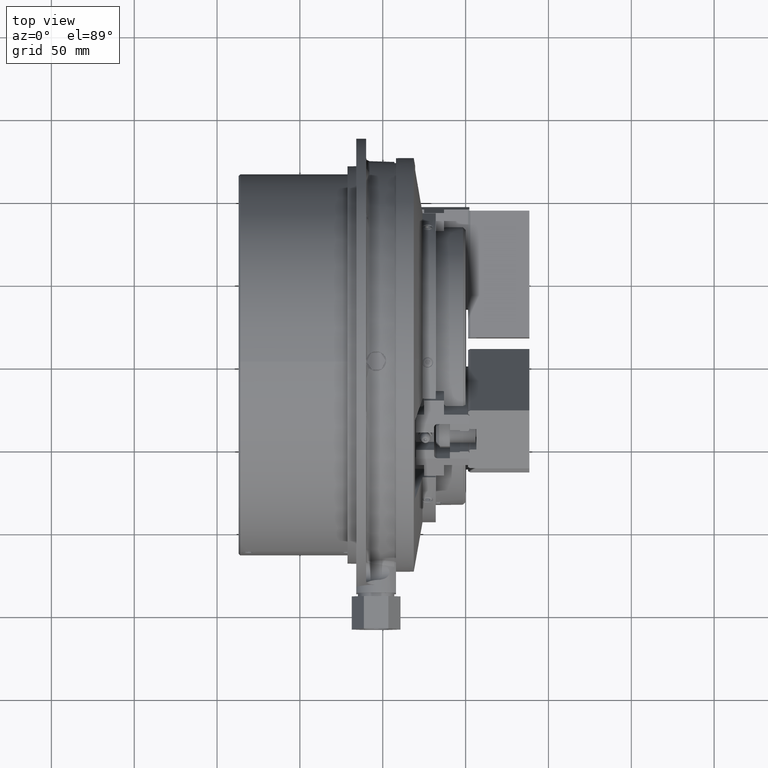
[diagram: clean part render]
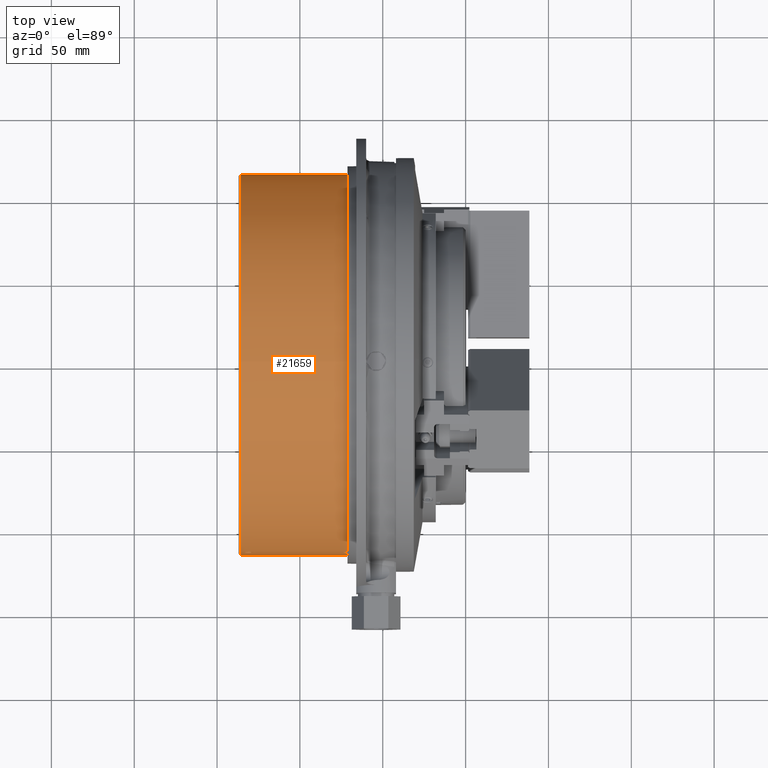
[diagram: same view with one face highlighted and labeled with its STEP entity id]
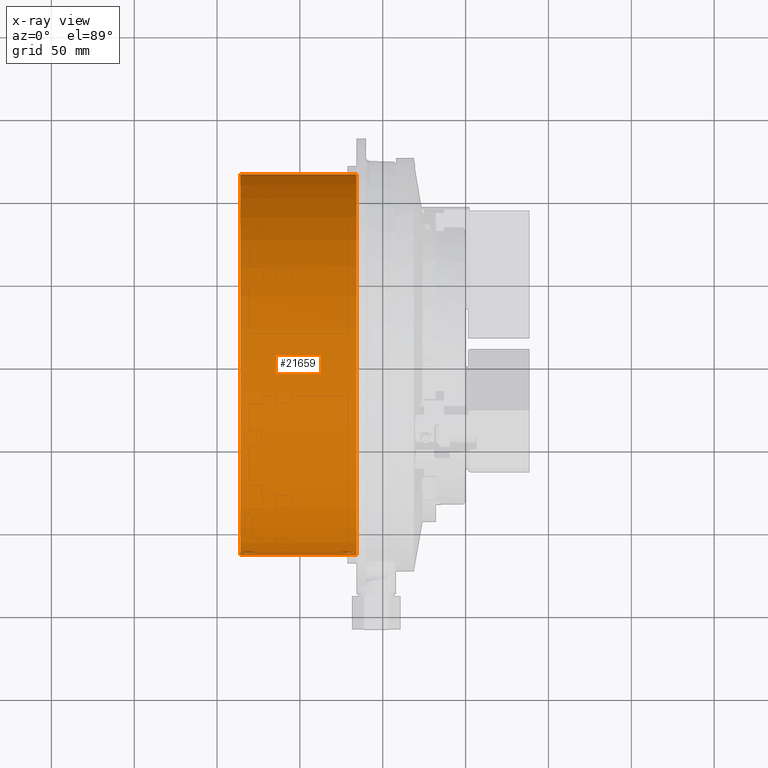
[diagram: x-ray of the same camera — body ghosted, the highlighted face saturated]
A machine part, top view. The second image highlights one B-rep face of the part: STEP entity #21659.
The next image is the same camera in x-ray: the body ghosted, the highlighted face saturated — about 0% of this face is hidden behind the body in this view.
In plain terms, the highlighted cylindrical surface (bore or boss wall) has radius 115 mm, axis along (1, 0, 0).
Its self-contained STEP definition (entity closure, byte-faithful):
#478=CYLINDRICAL_SURFACE('',#23648,115.);
#724=B_SPLINE_CURVE_WITH_KNOTS('',3,(#40210,#40211,#40212,#40213,#40214,
#40215,#40216,#40217,#40218,#40219,#40220,#40221,#40222,#40223,#40224,#40225,
#40226,#40227,#40228,#40229,#40230,#40231,#40232,#40233,#40234,#40235,#40236,
#40237,#40238,#40239,#40240,#40241,#40242,#40243,#40244,#40245,#40246,#40247,
#40248,#40249,#40250,#40251,#40252,#40253,#40254,#40255,#40256,#40257,#40258,
#40259,#40260,#40261,#40262,#40263,#40264,#40265,#40266,#40267,#40268,#40269,
#40270,#40271,#40272,#40273,#40274,#40275,#40276,#40277,#40278,#40279,#40280,
#40281,#40282,#40283,#40284,#40285,#40286,#40287,#40288,#40289,#40290,#40291,
#40292,#40293,#40294,#40295,#40296,#40297,#40298,#40299,#40300,#40301,#40302,
#40303,#40304,#40305,#40306,#40307,#40308,#40309,#40310,#40311,#40312,#40313,
#40314,#40315,#40316,#40317,#40318,#40319,#40320,#40321,#40322,#40323,#40324,
#40325,#40326,#40327,#40328,#40329,#40330,#40331,#40332,#40333,#40334,#40335,
#40336,#40337,#40338,#40339,#40340,#40341,#40342,#40343,#40344,#40345,#40346,
#40347,#40348,#40349,#40350,#40351,#40352,#40353,#40354,#40355,#40356,#40357,
#40358,#40359,#40360,#40361,#40362,#40363,#40364,#40365,#40366,#40367,#40368,
#40369,#40370,#40371,#40372,#40373,#40374,#40375,#40376,#40377,#40378,#40379,
#40380,#40381,#40382,#40383,#40384,#40385,#40386,#40387,#40388,#40389,#40390),
 .UNSPECIFIED.,.T.,.F.,(1,1,2,2,1,2,1,2,2,2,1,2,1,2,2,2,1,2,2,2,1,2,1,2,
1,2,2,1,1,2,2,2,1,2,1,2,2,2,2,1,2,2,2,1,1,2,1,2,2,2,1,2,1,1,2,2,2,1,2,2,
2,1,2,1,2,1,2,2,1,2,1,2,2,1,2,1,2,2,2,2,1,1,1,2,2,1,2,1,2,2,2,1,2,1,2,1,
2,2,2,1,2,1,2,2,2,1,2,1,2,2,1,1,2,2),(-0.0312500000000693,-0.0156250000000345,
0.,0.015624999999955,0.0312499999999099,0.0468749999998649,0.0507812499998543,
0.0527343749998491,0.0546874999998438,0.0624999999998227,0.0781249999997839,
0.0937499999997451,0.101562499999727,0.105468749999719,0.10937499999971,
0.124999999999681,0.140624999999653,0.156249999999624,0.16015624999962,
0.162109374999618,0.164062499999615,0.171874999999616,0.187499999999621,
0.203124999999626,0.210937499999628,0.214843749999628,0.218749999999628,
0.234374999999624,0.249999999999621,0.265624999999618,0.267578124999617,
0.269531249999616,0.273437499999614,0.281249999999611,0.296874999999607,
0.312499999999603,0.320312499999601,0.3242187499996,0.328124999999599,0.343749999999595,
0.359374999999591,0.374999999999588,0.376953124999587,0.378906249999586,
0.382812499999586,0.390624999999584,0.40624999999958,0.421874999999577,
0.429687499999575,0.437499999999574,0.45312499999957,0.468749999999567,
0.476562499999566,0.480468749999564,0.482421874999563,0.484374999999562,
0.499999999999549,0.515624999999535,0.531249999999522,0.535156249999517,
0.537109374999515,0.539062499999513,0.546874999999507,0.562499999999495,
0.578124999999483,0.585937499999477,0.589843749999474,0.591796874999472,
0.593749999999471,0.609374999999476,0.624999999999481,0.640624999999486,
0.644531249999488,0.648437499999489,0.656249999999492,0.6718749999995,0.687499999999509,
0.695312499999513,0.697265624999515,0.699218749999517,0.703124999999521,
0.71874999999954,0.73437499999956,0.749999999999579,0.753906249999586,0.757812499999592,
0.765624999999603,0.781249999999628,0.796874999999652,0.804687499999664,
0.806640624999667,0.808593749999671,0.812499999999678,0.828124999999707,
0.843749999999736,0.85156249999975,0.855468749999758,0.859374999999765,
0.874999999999794,0.890624999999822,0.906249999999851,0.910156249999858,
0.912109374999861,0.914062499999864,0.921874999999874,0.937499999999893,
0.953124999999911,0.96093749999992,0.964843749999925,0.966796874999928,
0.968749999999931,0.984374999999965,1.,1.01562499999995),.UNSPECIFIED.);
#747=B_SPLINE_CURVE_WITH_KNOTS('',3,(#42561,#42562,#42563,#42564,#42565,
#42566,#42567,#42568,#42569,#42570,#42571,#42572,#42573,#42574,#42575,#42576,
#42577,#42578,#42579,#42580,#42581,#42582,#42583,#42584,#42585,#42586,#42587,
#42588,#42589,#42590,#42591,#42592,#42593,#42594,#42595,#42596,#42597,#42598,
#42599,#42600,#42601,#42602,#42603,#42604,#42605,#42606,#42607,#42608,#42609,
#42610,#42611,#42612,#42613,#42614,#42615,#42616,#42617,#42618,#42619,#42620,
#42621,#42622,#42623,#42624,#42625,#42626,#42627,#42628,#42629,#42630,#42631,
#42632,#42633,#42634,#42635,#42636,#42637,#42638,#42639,#42640,#42641,#42642,
#42643,#42644,#42645,#42646,#42647,#42648,#42649,#42650,#42651,#42652,#42653,
#42654,#42655,#42656,#42657,#42658,#42659,#42660,#42661,#42662,#42663,#42664,
#42665,#42666,#42667,#42668,#42669,#42670,#42671,#42672,#42673,#42674,#42675,
#42676,#42677,#42678,#42679,#42680,#42681,#42682,#42683,#42684,#42685,#42686,
#42687,#42688,#42689,#42690,#42691,#42692,#42693,#42694,#42695,#42696,#42697,
#42698,#42699,#42700,#42701,#42702,#42703,#42704,#42705,#42706,#42707,#42708,
#42709,#42710,#42711,#42712,#42713,#42714,#42715,#42716,#42717,#42718,#42719,
#42720,#42721,#42722,#42723,#42724,#42725,#42726,#42727,#42728,#42729,#42730,
#42731,#42732,#42733,#42734,#42735,#42736,#42737,#42738,#42739),
 .UNSPECIFIED.,.T.,.F.,(1,1,2,2,1,2,1,2,2,2,1,2,1,2,2,2,1,2,2,2,1,2,1,2,
1,2,2,1,1,2,2,2,1,2,1,2,2,2,2,1,2,2,2,1,1,2,1,2,2,2,1,2,1,1,2,2,1,1,2,2,
2,1,2,1,2,1,2,2,1,2,1,2,2,1,2,1,2,2,2,2,1,1,1,2,2,1,2,1,2,2,2,1,2,1,2,1,
2,2,2,1,2,1,2,2,2,1,2,1,2,2,1,2,2),(-0.0312500000000406,-0.0156250000000202,
0.,0.0156249999999914,0.0312499999999828,0.0468749999999742,0.0507812499999729,
0.0527343749999715,0.0546874999999702,0.0624999999999615,0.0781249999999458,
0.09374999999993,0.101562499999922,0.105468749999918,0.109374999999914,
0.124999999999895,0.140624999999876,0.156249999999857,0.160156249999853,
0.162109374999851,0.16406249999985,0.171874999999842,0.187499999999828,
0.203124999999814,0.210937499999807,0.214843749999804,0.2187499999998,0.234374999999786,
0.249999999999771,0.265624999999757,0.267578124999756,0.269531249999754,
0.27343749999975,0.281249999999742,0.296874999999726,0.312499999999711,
0.320312499999702,0.324218749999698,0.328124999999694,0.343749999999678,
0.359374999999662,0.374999999999646,0.376953124999645,0.378906249999643,
0.38281249999964,0.390624999999634,0.406249999999623,0.421874999999611,
0.429687499999605,0.437499999999599,0.453124999999587,0.468749999999575,
0.476562499999569,0.480468749999566,0.482421874999564,0.484374999999563,
0.499999999999551,0.515624999999538,0.531249999999526,0.535156249999523,
0.537109374999521,0.53906249999952,0.546874999999517,0.562499999999513,
0.578124999999509,0.585937499999507,0.589843749999506,0.591796874999507,
0.593749999999508,0.60937499999952,0.624999999999531,0.640624999999542,
0.644531249999545,0.648437499999548,0.656249999999556,0.671874999999572,
0.687499999999589,0.695312499999598,0.6972656249996,0.699218749999601,0.703124999999606,
0.718749999999621,0.734374999999637,0.749999999999652,0.753906249999657,
0.757812499999662,0.765624999999671,0.781249999999692,0.796874999999712,
0.804687499999722,0.806640624999725,0.808593749999728,0.812499999999733,
0.828124999999757,0.84374999999978,0.851562499999792,0.855468749999798,
0.859374999999803,0.874999999999827,0.890624999999851,0.906249999999874,
0.910156249999881,0.912109374999884,0.914062499999886,0.921874999999897,
0.937499999999918,0.953124999999939,0.960937499999949,0.964843749999954,
0.968749999999959,0.98437499999998,1.,1.01562499999999),.UNSPECIFIED.);
#748=B_SPLINE_CURVE_WITH_KNOTS('',3,(#42742,#42743,#42744,#42745,#42746,
#42747,#42748,#42749,#42750,#42751,#42752,#42753,#42754,#42755,#42756,#42757,
#42758,#42759,#42760,#42761,#42762,#42763,#42764,#42765,#42766,#42767,#42768,
#42769,#42770,#42771,#42772,#42773,#42774,#42775,#42776,#42777,#42778,#42779,
#42780,#42781,#42782,#42783,#42784,#42785,#42786,#42787,#42788,#42789,#42790,
#42791,#42792,#42793,#42794,#42795,#42796,#42797,#42798,#42799,#42800,#42801,
#42802,#42803,#42804,#42805,#42806,#42807,#42808,#42809,#42810,#42811,#42812,
#42813,#42814,#42815,#42816,#42817,#42818,#42819,#42820,#42821,#42822,#42823,
#42824,#42825,#42826,#42827,#42828,#42829,#42830,#42831,#42832,#42833,#42834,
#42835,#42836,#42837,#42838,#42839,#42840,#42841,#42842,#42843,#42844,#42845,
#42846,#42847,#42848,#42849,#42850,#42851,#42852,#42853,#42854,#42855,#42856,
#42857,#42858,#42859,#42860,#42861,#42862,#42863,#42864,#42865,#42866,#42867,
#42868,#42869,#42870,#42871,#42872,#42873,#42874,#42875,#42876,#42877,#42878,
#42879,#42880,#42881,#42882,#42883,#42884,#42885,#42886,#42887,#42888,#42889,
#42890,#42891,#42892,#42893,#42894,#42895,#42896,#42897,#42898,#42899,#42900,
#42901,#42902,#42903,#42904,#42905,#42906,#42907,#42908,#42909,#42910,#42911,
#42912,#42913,#42914,#42915,#42916,#42917,#42918,#42919,#42920,#42921,#42922),
 .UNSPECIFIED.,.T.,.F.,(1,1,2,2,1,2,1,2,2,2,1,2,1,2,2,2,1,2,2,2,1,2,1,2,
1,2,2,1,1,2,2,2,1,2,1,2,2,2,2,1,2,2,2,1,1,2,1,2,2,2,1,2,1,1,2,2,2,1,2,2,
2,1,2,1,2,1,2,2,1,2,1,2,2,1,2,1,2,2,2,2,1,1,1,2,2,1,2,1,2,2,2,1,2,1,2,1,
2,2,2,1,2,1,2,2,2,1,2,1,2,2,1,1,2,2),(-0.0312499999999725,-0.0156249999999862,
0.,0.0156250000000149,0.0312500000000298,0.0468750000000447,0.0507812500000492,
0.0527343750000507,0.0546875000000522,0.0625000000000547,0.0781250000000582,
0.0937500000000616,0.101562500000064,0.105468750000065,0.109375000000067,
0.12500000000007,0.140625000000074,0.156250000000077,0.160156250000078,
0.162109375000079,0.16406250000008,0.171875000000082,0.187500000000089,
0.203125000000096,0.210937500000099,0.2148437500001,0.218750000000101,0.234375000000109,
0.250000000000116,0.265625000000124,0.267578125000124,0.269531250000125,
0.273437500000127,0.281250000000131,0.29687500000014,0.312500000000148,
0.320312500000152,0.324218750000154,0.328125000000157,0.343750000000167,
0.359375000000176,0.375000000000186,0.376953125000187,0.378906250000188,
0.382812500000191,0.390625000000195,0.406250000000203,0.421875000000211,
0.429687500000215,0.437500000000219,0.453125000000227,0.468750000000235,
0.476562500000239,0.480468750000241,0.482421875000243,0.484375000000244,
0.500000000000251,0.515625000000259,0.531250000000266,0.535156250000269,
0.53710937500027,0.539062500000272,0.546875000000279,0.562500000000294,
0.578125000000308,0.585937500000315,0.589843750000318,0.591796875000319,
0.593750000000321,0.609375000000322,0.625000000000322,0.640625000000323,
0.644531250000322,0.648437500000322,0.656250000000319,0.671875000000312,
0.687500000000306,0.695312500000302,0.6972656250003,0.699218750000299,0.703125000000295,
0.718750000000279,0.734375000000263,0.750000000000246,0.753906250000242,
0.757812500000237,0.765625000000228,0.781250000000209,0.79687500000019,
0.80468750000018,0.806640625000178,0.808593750000176,0.812500000000172,
0.828125000000157,0.843750000000141,0.851562500000134,0.85546875000013,
0.859375000000126,0.87500000000011,0.890625000000093,0.906250000000077,
0.910156250000073,0.912109375000071,0.914062500000069,0.921875000000064,
0.937500000000051,0.953125000000039,0.960937500000033,0.964843750000031,
0.966796875000029,0.968750000000028,0.984375000000014,1.,1.01562500000001),
 .UNSPECIFIED.);
#10084=ORIENTED_EDGE('',*,*,#12477,.F.);
#10085=ORIENTED_EDGE('',*,*,#12475,.F.);
#10086=ORIENTED_EDGE('',*,*,#13205,.F.);
#10087=ORIENTED_EDGE('',*,*,#13206,.F.);
#10088=ORIENTED_EDGE('',*,*,#10619,.T.);
#10619=EDGE_CURVE('',#13520,#13520,#15528,.T.);
#12475=EDGE_CURVE('',#14793,#14793,#724,.T.);
#12477=EDGE_CURVE('',#14795,#14795,#15908,.T.);
#13205=EDGE_CURVE('',#15259,#15259,#747,.T.);
#13206=EDGE_CURVE('',#15260,#15260,#748,.T.);
#13520=VERTEX_POINT('',#32036);
#14793=VERTEX_POINT('',#40391);
#14795=VERTEX_POINT('',#40396);
#15259=VERTEX_POINT('',#42740);
#15260=VERTEX_POINT('',#42923);
#15528=CIRCLE('',#22042,115.);
#15908=CIRCLE('',#23056,115.);
#17658=EDGE_LOOP('',(#10084));
#17659=EDGE_LOOP('',(#10085));
#17660=EDGE_LOOP('',(#10086));
#17661=EDGE_LOOP('',(#10087));
#17662=EDGE_LOOP('',(#10088));
#19412=FACE_BOUND('',#17658,.T.);
#19413=FACE_BOUND('',#17659,.T.);
#19414=FACE_BOUND('',#17660,.T.);
#19415=FACE_BOUND('',#17661,.T.);
#19416=FACE_BOUND('',#17662,.T.);
#21659=ADVANCED_FACE('',(#19412,#19413,#19414,#19415,#19416),#478,.T.);
#22042=AXIS2_PLACEMENT_3D('',#32035,#24344,#24345);
#23056=AXIS2_PLACEMENT_3D('',#40395,#27696,#27697);
#23648=AXIS2_PLACEMENT_3D('',#42924,#29404,#29405);
#24344=DIRECTION('',(-1.,0.,0.));
#24345=DIRECTION('',(0.,0.,1.));
#27696=DIRECTION('',(-1.,0.,0.));
#27697=DIRECTION('',(0.,0.,1.));
#29404=DIRECTION('',(1.,0.,0.));
#29405=DIRECTION('',(0.,0.,-1.));
#32035=CARTESIAN_POINT('',(-65.8,0.,0.));
#32036=CARTESIAN_POINT('',(-65.8,0.,115.));
#40210=CARTESIAN_POINT('',(-133.593874814938,-113.914985151284,15.7601710850498));
#40211=CARTESIAN_POINT('',(-133.406286473492,-113.937496074386,15.59659651804));
#40212=CARTESIAN_POINT('',(-133.309203080286,-113.947937473222,15.5200754592976));
#40213=CARTESIAN_POINT('',(-133.108687254715,-113.967305452266,15.3772061126387));
#40214=CARTESIAN_POINT('',(-132.90182018955,-113.985158032638,15.2445130550453));
#40215=CARTESIAN_POINT('',(-132.682332406961,-114.000103272027,15.1320555705407));
#40216=CARTESIAN_POINT('',(-132.541118527192,-114.008544675873,15.0682416568252));
#40217=CARTESIAN_POINT('',(-132.498451126207,-114.011009473179,15.0495839817263));
#40218=CARTESIAN_POINT('',(-132.455324126064,-114.013372547406,15.0316637692804));
#40219=CARTESIAN_POINT('',(-132.426470054898,-114.014925274426,15.0198818228842));
#40220=CARTESIAN_POINT('',(-132.411983770376,-114.015690704389,15.0140702813707));
#40221=CARTESIAN_POINT('',(-132.339484580595,-114.01945131126,14.9855014625375));
#40222=CARTESIAN_POINT('',(-132.281150511269,-114.022253614643,14.9641599085997));
#40223=CARTESIAN_POINT('',(-132.105164470062,-114.030061587832,14.9045847976551));
#40224=CARTESIAN_POINT('',(-131.86789786137,-114.038878995538,14.8369942821938));
#40225=CARTESIAN_POINT('',(-131.625491439427,-114.044629651429,14.7926575597097));
#40226=CARTESIAN_POINT('',(-131.441740037083,-114.047796674675,14.7682138782768));
#40227=CARTESIAN_POINT('',(-131.349376907602,-114.049093122229,14.7581977761389));
#40228=CARTESIAN_POINT('',(-131.25627064991,-114.049953664893,14.7515447488554));
#40229=CARTESIAN_POINT('',(-131.194032855917,-114.050429555998,14.7478649822317));
#40230=CARTESIAN_POINT('',(-131.162796680612,-114.050618648702,14.7464025112878));
#40231=CARTESIAN_POINT('',(-131.00701252749,-114.051314078038,14.7410235702721));
#40232=CARTESIAN_POINT('',(-130.883140893712,-114.051078284932,14.7428492262815));
#40233=CARTESIAN_POINT('',(-130.636861610233,-114.049070495917,14.758373575775));
#40234=CARTESIAN_POINT('',(-130.392046887177,-114.04552570188,14.7857756113022));
#40235=CARTESIAN_POINT('',(-130.150152338637,-114.038891108433,14.8368571907245));
#40236=CARTESIAN_POINT('',(-129.999904923997,-114.03373834069,14.8763766953123));
#40237=CARTESIAN_POINT('',(-129.969902384181,-114.032657334537,14.884661153761));
#40238=CARTESIAN_POINT('',(-129.924969780475,-114.030958933482,14.8976650459051));
#40239=CARTESIAN_POINT('',(-129.909995778716,-114.030379639338,14.902098512379));
#40240=CARTESIAN_POINT('',(-129.88014921131,-114.029198321007,14.9111351449117));
#40241=CARTESIAN_POINT('',(-129.805749662529,-114.026186795825,14.9341616440649));
#40242=CARTESIAN_POINT('',(-129.732426489348,-114.022885503071,14.9593466414288));
#40243=CARTESIAN_POINT('',(-129.558479255177,-114.014409654717,15.0238573369547));
#40244=CARTESIAN_POINT('',(-129.331948905757,-114.001637200196,15.1206966482694));
#40245=CARTESIAN_POINT('',(-129.11605235237,-113.985884409471,15.2388446623498));
#40246=CARTESIAN_POINT('',(-128.95817124884,-113.972900263454,15.3355490071254));
#40247=CARTESIAN_POINT('',(-128.880242650805,-113.966115266684,15.3859277604283));
#40248=CARTESIAN_POINT('',(-128.803859670094,-113.958875208931,15.4394008115758));
#40249=CARTESIAN_POINT('',(-128.753285256473,-113.953945284385,15.475745230153));
#40250=CARTESIAN_POINT('',(-128.728274635316,-113.951438720902,15.4941914955542));
#40251=CARTESIAN_POINT('',(-128.604617648476,-113.938700904637,15.5877567811202));
#40252=CARTESIAN_POINT('',(-128.415612423552,-113.917005798524,15.7460157796162));
#40253=CARTESIAN_POINT('',(-128.157924578364,-113.880456353343,16.0083499829867));
#40254=CARTESIAN_POINT('',(-128.003356250806,-113.853303083023,16.1998638669053));
#40255=CARTESIAN_POINT('',(-127.921402883919,-113.83718921884,16.3124035727407));
#40256=CARTESIAN_POINT('',(-127.912366451404,-113.835387091417,16.3249750008316));
#40257=CARTESIAN_POINT('',(-127.894433396424,-113.831759192916,16.3502526609339));
#40258=CARTESIAN_POINT('',(-127.885531764159,-113.829932353505,16.3629663045039));
#40259=CARTESIAN_POINT('',(-127.859105589022,-113.824430267312,16.4012114771653));
#40260=CARTESIAN_POINT('',(-127.807317661498,-113.813329609845,16.4781901433931));
#40261=CARTESIAN_POINT('',(-127.758683465552,-113.801939164825,16.5566150514897));
#40262=CARTESIAN_POINT('',(-127.665550179096,-113.778768618869,16.715359706718));
#40263=CARTESIAN_POINT('',(-127.552380062368,-113.746836818539,16.9320632132343));
#40264=CARTESIAN_POINT('',(-127.460970192645,-113.712760604744,17.1587239922621));
#40265=CARTESIAN_POINT('',(-127.400714315441,-113.686355374534,17.3325138108606));
#40266=CARTESIAN_POINT('',(-127.382015073413,-113.677412093121,17.3910772571533));
#40267=CARTESIAN_POINT('',(-127.356086531874,-113.663777455781,17.4798910629067));
#40268=CARTESIAN_POINT('',(-127.347789184401,-113.659190760682,17.5096906089784));
#40269=CARTESIAN_POINT('',(-127.331990356415,-113.649991067074,17.5693039147608));
#40270=CARTESIAN_POINT('',(-127.324479411359,-113.64537358899,17.5991470266852));
#40271=CARTESIAN_POINT('',(-127.288846850631,-113.622197918758,17.7485428216726));
#40272=CARTESIAN_POINT('',(-127.244102328614,-113.584552182142,17.9887261867633));
#40273=CARTESIAN_POINT('',(-127.223307821867,-113.545763649917,18.2311484350943));
#40274=CARTESIAN_POINT('',(-127.214542137168,-113.506391502416,18.4746936160143));
#40275=CARTESIAN_POINT('',(-127.21617258673,-113.486413658043,18.5970275655383));
#40276=CARTESIAN_POINT('',(-127.225003199859,-113.463600028769,18.7353065360447));
#40277=CARTESIAN_POINT('',(-127.226082536241,-113.461059087966,18.750688326717));
#40278=CARTESIAN_POINT('',(-127.228430706859,-113.455981097627,18.7813895992399));
#40279=CARTESIAN_POINT('',(-127.232238207663,-113.448366057753,18.827371698712));
#40280=CARTESIAN_POINT('',(-127.243109859664,-113.430611454951,18.9341769036248));
#40281=CARTESIAN_POINT('',(-127.255796996177,-113.415417366562,19.0249000133694));
#40282=CARTESIAN_POINT('',(-127.285595576991,-113.385063764887,19.2052642019668));
#40283=CARTESIAN_POINT('',(-127.33710645765,-113.344684035937,19.4428688943544));
#40284=CARTESIAN_POINT('',(-127.411980784747,-113.304532279047,19.6747674537162));
#40285=CARTESIAN_POINT('',(-127.47708073695,-113.274530986126,19.8465112099325));
#40286=CARTESIAN_POINT('',(-127.500277309522,-113.264548122312,19.9034024889215));
#40287=CARTESIAN_POINT('',(-127.549709010754,-113.244631312711,20.0164125366113));
#40288=CARTESIAN_POINT('',(-127.575741772715,-113.234778757148,20.07206967139));
#40289=CARTESIAN_POINT('',(-127.657707083667,-113.205540125112,20.2365527912578));
#40290=CARTESIAN_POINT('',(-127.777285963745,-113.167404531549,20.4492412635859));
#40291=CARTESIAN_POINT('',(-127.917029330101,-113.131028462894,20.6489720146145));
#40292=CARTESIAN_POINT('',(-128.029460117138,-113.104451825093,20.7938786408002));
#40293=CARTESIAN_POINT('',(-128.08758439628,-113.091340182036,20.8651071316707));
#40294=CARTESIAN_POINT('',(-128.158788328124,-113.07636661431,20.9460321088046));
#40295=CARTESIAN_POINT('',(-128.190038920748,-113.070020424743,20.9802434313375));
#40296=CARTESIAN_POINT('',(-128.21103686879,-113.065805630781,21.0029457541671));
#40297=CARTESIAN_POINT('',(-128.221621888757,-113.063705494127,21.0142482652562));
#40298=CARTESIAN_POINT('',(-128.317365800376,-113.044928613476,21.1152184131362));
#40299=CARTESIAN_POINT('',(-128.406291842049,-113.029033747476,21.2000987265111));
#40300=CARTESIAN_POINT('',(-128.591533335679,-112.998840127834,21.3604486700313));
#40301=CARTESIAN_POINT('',(-128.784167043659,-112.970243376728,21.5113843877287));
#40302=CARTESIAN_POINT('',(-128.991518988465,-112.94493621117,21.64359680091));
#40303=CARTESIAN_POINT('',(-129.125828157143,-112.930206180362,21.7202388499744));
#40304=CARTESIAN_POINT('',(-129.152926248817,-112.92731464144,21.7352670270017));
#40305=CARTESIAN_POINT('',(-129.19393162283,-112.923060514724,21.7573541636715));
#40306=CARTESIAN_POINT('',(-129.20766376307,-112.921655938139,21.7646427508723));
#40307=CARTESIAN_POINT('',(-129.235231271032,-112.918876477564,21.7790585056981));
#40308=CARTESIAN_POINT('',(-129.304305135363,-112.912012487093,21.8146401581543));
#40309=CARTESIAN_POINT('',(-129.37414862242,-112.905569891215,21.8479506507224));
#40310=CARTESIAN_POINT('',(-129.543222276443,-112.890909723241,21.9236206463544));
#40311=CARTESIAN_POINT('',(-129.77251167751,-112.873498438895,22.0131339392394));
#40312=CARTESIAN_POINT('',(-130.009388880246,-112.860365318876,22.080279647708));
#40313=CARTESIAN_POINT('',(-130.189926590801,-112.852162123971,22.1221541955733));
#40314=CARTESIAN_POINT('',(-130.280916555407,-112.848472750357,22.1409668574));
#40315=CARTESIAN_POINT('',(-130.373007123169,-112.845415825624,22.1565374399687));
#40316=CARTESIAN_POINT('',(-130.419237962756,-112.843994220055,22.1637761789574));
#40317=CARTESIAN_POINT('',(-130.434684507382,-112.843538037779,22.1660986250984));
#40318=CARTESIAN_POINT('',(-130.465554612841,-112.842663829918,22.1705486333718));
#40319=CARTESIAN_POINT('',(-130.604456157184,-112.838899414588,22.1897070942264));
#40320=CARTESIAN_POINT('',(-130.743233823845,-112.836645285354,22.2011598726174));
#40321=CARTESIAN_POINT('',(-130.98975964244,-112.834964386141,22.2097014323002));
#40322=CARTESIAN_POINT('',(-131.236095349011,-112.835610725797,22.2064191245352));
#40323=CARTESIAN_POINT('',(-131.482051207029,-112.84090414677,22.179511885689));
#40324=CARTESIAN_POINT('',(-131.635651512617,-112.845698281566,22.1550988285986));
#40325=CARTESIAN_POINT('',(-131.666373624804,-112.846731837401,22.1498340114233));
#40326=CARTESIAN_POINT('',(-131.727771989894,-112.848948016732,22.1385402787565));
#40327=CARTESIAN_POINT('',(-131.819462316987,-112.852483734007,22.1205153173411));
#40328=CARTESIAN_POINT('',(-131.909946541759,-112.85664422247,22.0992784102714));
#40329=CARTESIAN_POINT('',(-132.089334944167,-112.865778850126,22.0525958682621));
#40330=CARTESIAN_POINT('',(-132.324313327313,-112.880124507374,21.9791486994669));
#40331=CARTESIAN_POINT('',(-132.550990823478,-112.898680094333,21.8835781309051));
#40332=CARTESIAN_POINT('',(-132.717837652767,-112.914168700577,21.8034686775088));
#40333=CARTESIAN_POINT('',(-132.772925445732,-112.919593957189,21.7753577668253));
#40334=CARTESIAN_POINT('',(-132.841112944767,-112.926705947593,21.7384254353685));
#40335=CARTESIAN_POINT('',(-132.854716811899,-112.928144875252,21.7309492292531));
#40336=CARTESIAN_POINT('',(-132.881856885052,-112.931055885595,21.7158162622283));
#40337=CARTESIAN_POINT('',(-132.895397928772,-112.932528529026,21.7081565773096));
#40338=CARTESIAN_POINT('',(-132.935808786012,-112.936983868795,21.6849700341886));
#40339=CARTESIAN_POINT('',(-133.069261432773,-112.952104685107,21.6061923854082));
#40340=CARTESIAN_POINT('',(-133.29842533916,-112.981687341348,21.4512260280686));
#40341=CARTESIAN_POINT('',(-133.580993544154,-113.025890653528,21.2171901703945));
#40342=CARTESIAN_POINT('',(-133.754009870242,-113.058429177834,21.0428213943281));
#40343=CARTESIAN_POINT('',(-133.857187979256,-113.079719402796,20.9279145176861));
#40344=CARTESIAN_POINT('',(-133.877592912615,-113.084029318325,20.9046139147463));
#40345=CARTESIAN_POINT('',(-133.917685859276,-113.092697817497,20.8576669431264));
#40346=CARTESIAN_POINT('',(-133.976823151678,-113.105788418931,20.7866478824229));
#40347=CARTESIAN_POINT('',(-134.032989381173,-113.119135387379,20.7138533721605));
#40348=CARTESIAN_POINT('',(-134.141422289949,-113.146155488237,20.5659321974145));
#40349=CARTESIAN_POINT('',(-134.275617617371,-113.18304989604,20.3624948685099));
#40350=CARTESIAN_POINT('',(-134.389248568019,-113.221559687917,20.1467400181764));
#40351=CARTESIAN_POINT('',(-134.466609861992,-113.251024058721,19.9802083956126));
#40352=CARTESIAN_POINT('',(-134.491084300468,-113.260942736463,19.9239105450758));
#40353=CARTESIAN_POINT('',(-134.520002129055,-113.273461803944,19.8525328613373));
#40354=CARTESIAN_POINT('',(-134.52570398653,-113.275972657763,19.8382012907919));
#40355=CARTESIAN_POINT('',(-134.536908780521,-113.280992672417,19.8095156721074));
#40356=CARTESIAN_POINT('',(-134.553428577366,-113.28852483782,19.7664268688439));
#40357=CARTESIAN_POINT('',(-134.569091447358,-113.296063043116,19.7231579843728));
#40358=CARTESIAN_POINT('',(-134.619415579362,-113.321202286783,19.578531912802));
#40359=CARTESIAN_POINT('',(-134.687899647586,-113.361499666766,19.3445994306708));
#40360=CARTESIAN_POINT('',(-134.732839073234,-113.40188267622,19.1057054694419));
#40361=CARTESIAN_POINT('',(-134.757655819882,-113.432186823393,18.9246594807405));
#40362=CARTESIAN_POINT('',(-134.767838657604,-113.447343238724,18.8336668705715));
#40363=CARTESIAN_POINT('',(-134.774634111473,-113.462504515342,18.7419591836902));
#40364=CARTESIAN_POINT('',(-134.778404030144,-113.472612995042,18.6806601867974));
#40365=CARTESIAN_POINT('',(-134.779909090798,-113.477669043193,18.6499223284535));
#40366=CARTESIAN_POINT('',(-134.785507923108,-113.502937877132,18.4959098884367));
#40367=CARTESIAN_POINT('',(-134.78377458055,-113.52281864321,18.3734818204911));
#40368=CARTESIAN_POINT('',(-134.768314272584,-113.561936276684,18.1301354210845));
#40369=CARTESIAN_POINT('',(-134.740855984893,-113.600409964998,17.8882993363029));
#40370=CARTESIAN_POINT('',(-134.689551633775,-113.63762870178,17.6494689570772));
#40371=CARTESIAN_POINT('',(-134.649862702106,-113.660504068145,17.5011632667575));
#40372=CARTESIAN_POINT('',(-134.637382945974,-113.667337676743,17.4567439773354));
#40373=CARTESIAN_POINT('',(-134.624034555827,-113.67412786684,17.4124345396965));
#40374=CARTESIAN_POINT('',(-134.614941450271,-113.678645018241,17.3829194815628));
#40375=CARTESIAN_POINT('',(-134.610296471303,-113.680899329444,17.3681705611919));
#40376=CARTESIAN_POINT('',(-134.586650420027,-113.692115604014,17.2946924050093));
#40377=CARTESIAN_POINT('',(-134.566338546836,-113.700936320211,17.2366020796938));
#40378=CARTESIAN_POINT('',(-134.501302186624,-113.726957456087,17.0643668350522));
#40379=CARTESIAN_POINT('',(-134.403672520131,-113.760478487113,16.8401381360509));
#40380=CARTESIAN_POINT('',(-134.284615225004,-113.791777394987,16.6265589270688));
#40381=CARTESIAN_POINT('',(-134.187204909811,-113.814446449731,16.4704142466913));
#40382=CARTESIAN_POINT('',(-134.136467148536,-113.825579433299,16.3933534734682));
#40383=CARTESIAN_POINT('',(-134.082629995315,-113.836412699161,16.317836300596));
#40384=CARTESIAN_POINT('',(-134.055189125722,-113.841779484905,16.2803379309813));
#40385=CARTESIAN_POINT('',(-134.045951589404,-113.843560772453,16.2678771727813));
#40386=CARTESIAN_POINT('',(-134.027317435668,-113.847103742734,16.243063978059));
#40387=CARTESIAN_POINT('',(-133.942817077768,-113.862944825979,16.1319900040502));
#40388=CARTESIAN_POINT('',(-133.772322558646,-113.891152669734,15.932045877234));
#40389=CARTESIAN_POINT('',(-133.593874814938,-113.914985151284,15.7601710850498));
#40390=CARTESIAN_POINT('',(-133.406286473492,-113.937496074386,15.59659651804));
#40391=CARTESIAN_POINT('',(-133.500080644215,-113.926240612835,15.6783838015447));
#40395=CARTESIAN_POINT('',(-136.,0.,0.));
#40396=CARTESIAN_POINT('',(-136.,0.,115.));
#42561=CARTESIAN_POINT('',(-74.2518795672988,-113.490200493251,-18.5736944669227));
#42562=CARTESIAN_POINT('',(-74.074346445627,-113.461660823519,-18.74724665965));
#42563=CARTESIAN_POINT('',(-73.9819822517687,-113.448123568055,-18.8289490578831));
#42564=CARTESIAN_POINT('',(-73.7903099049479,-113.42252009709,-18.982570441556));
#42565=CARTESIAN_POINT('',(-73.5916911009817,-113.398388323868,-19.1264049144846));
#42566=CARTESIAN_POINT('',(-73.3792691287571,-113.37728908377,-19.2508101473573));
#42567=CARTESIAN_POINT('',(-73.2420935046359,-113.365103391941,-19.3223586459217));
#42568=CARTESIAN_POINT('',(-73.2006091752697,-113.361522941148,-19.3433567801661));
#42569=CARTESIAN_POINT('',(-73.158622196468,-113.358057396612,-19.3636481391771));
#42570=CARTESIAN_POINT('',(-73.1305185163407,-113.355772811215,-19.3770177365766));
#42571=CARTESIAN_POINT('',(-73.1164028067744,-113.35464281921,-19.3836269822654));
#42572=CARTESIAN_POINT('',(-73.045727530521,-113.349072416274,-19.4161912048549));
#42573=CARTESIAN_POINT('',(-72.9887631768342,-113.344860911221,-19.4407575709144));
#42574=CARTESIAN_POINT('',(-72.8166234656637,-113.332953952617,-19.5100931584881));
#42575=CARTESIAN_POINT('',(-72.5837857898579,-113.319015362958,-19.5909269253032));
#42576=CARTESIAN_POINT('',(-72.3444352506926,-113.308950490328,-19.6489769917966));
#42577=CARTESIAN_POINT('',(-72.1624557256894,-113.302888969577,-19.6838891141595));
#42578=CARTESIAN_POINT('',(-72.0708483171466,-113.300230484616,-19.6991853352948));
#42579=CARTESIAN_POINT('',(-71.9782992455932,-113.29814224779,-19.7111891266386));
#42580=CARTESIAN_POINT('',(-71.9163883042675,-113.296878441044,-19.7184519955811));
#42581=CARTESIAN_POINT('',(-71.8852933342636,-113.296310305743,-19.7217159402028));
#42582=CARTESIAN_POINT('',(-71.7300996297595,-113.293806890534,-19.7360952721439));
#42583=CARTESIAN_POINT('',(-71.6063348669254,-113.292868631204,-19.7414770881514));
#42584=CARTESIAN_POINT('',(-71.3595612841971,-113.293059475851,-19.7403820318332));
#42585=CARTESIAN_POINT('',(-71.1135439419688,-113.295318320788,-19.7274235885666));
#42586=CARTESIAN_POINT('',(-70.8690344852059,-113.301688763028,-19.6908084070376));
#42587=CARTESIAN_POINT('',(-70.7166997518415,-113.306978225281,-19.6603337642817));
#42588=CARTESIAN_POINT('',(-70.6862570454075,-113.308101638684,-19.6538584382963));
#42589=CARTESIAN_POINT('',(-70.6406297548404,-113.30988585758,-19.6435683891947));
#42590=CARTESIAN_POINT('',(-70.6254182808659,-113.310497483326,-19.6400400596852));
#42591=CARTESIAN_POINT('',(-70.5950864427688,-113.311750598542,-19.6328090212076));
#42592=CARTESIAN_POINT('',(-70.5194474970074,-113.314959492324,-19.6142870617397));
#42593=CARTESIAN_POINT('',(-70.4447547895577,-113.318545515817,-19.5935595197608));
#42594=CARTESIAN_POINT('',(-70.2672754322,-113.327857045871,-19.5396561451262));
#42595=CARTESIAN_POINT('',(-70.0353827846917,-113.342149355328,-19.456718859426));
#42596=CARTESIAN_POINT('',(-69.8128381809555,-113.360065799126,-19.3519748763722));
#42597=CARTESIAN_POINT('',(-69.6494823418113,-113.374846723762,-19.2651237411825));
#42598=CARTESIAN_POINT('',(-69.5686940045394,-113.382573548634,-19.2196215380809));
#42599=CARTESIAN_POINT('',(-69.489264364587,-113.39080693779,-19.1709463720862));
#42600=CARTESIAN_POINT('',(-69.4366168089148,-113.396408938279,-19.1377825964048));
#42601=CARTESIAN_POINT('',(-69.4105526850287,-113.399255112267,-19.1209111338498));
#42602=CARTESIAN_POINT('',(-69.2815465165018,-113.413704009883,-19.0351412567832));
#42603=CARTESIAN_POINT('',(-69.0834572025926,-113.438219647448,-18.8888559007232));
#42604=CARTESIAN_POINT('',(-68.8106090699477,-113.47890724013,-18.6429754050697));
#42605=CARTESIAN_POINT('',(-68.6449100536206,-113.508529885669,-18.461391392519));
#42606=CARTESIAN_POINT('',(-68.5563988221887,-113.525883373753,-18.354126238368));
#42607=CARTESIAN_POINT('',(-68.5466296047771,-113.527821155772,-18.3421365411565));
#42608=CARTESIAN_POINT('',(-68.5272226643636,-113.531715952454,-18.3180135976236));
#42609=CARTESIAN_POINT('',(-68.5175795034592,-113.533674106471,-18.3058732682726));
#42610=CARTESIAN_POINT('',(-68.4889219737304,-113.539562158204,-18.2693304184293));
#42611=CARTESIAN_POINT('',(-68.4326400649262,-113.551403645767,-18.1956891284055));
#42612=CARTESIAN_POINT('',(-68.3794192269807,-113.563434795908,-18.1204010726076));
#42613=CARTESIAN_POINT('',(-68.2769911467506,-113.587735583198,-17.9676641717194));
#42614=CARTESIAN_POINT('',(-68.151104513377,-113.620771064148,-17.7582629117453));
#42615=CARTESIAN_POINT('',(-68.0463385588042,-113.654960737152,-17.5374752111599));
#42616=CARTESIAN_POINT('',(-67.9758215809564,-113.681009854848,-17.367535306381));
#42617=CARTESIAN_POINT('',(-67.9536612269577,-113.689760875815,-17.3101625341049));
#42618=CARTESIAN_POINT('',(-67.9224786836,-113.702987695405,-17.2229919839075));
#42619=CARTESIAN_POINT('',(-67.9124175886349,-113.707418323236,-17.1937167844527));
#42620=CARTESIAN_POINT('',(-67.893088655113,-113.716266553875,-17.1350984720669));
#42621=CARTESIAN_POINT('',(-67.8838096632199,-113.720688523772,-17.1057267472772));
#42622=CARTESIAN_POINT('',(-67.8393220601745,-113.742786494013,-16.9585583453938));
#42623=CARTESIAN_POINT('',(-67.7803149689926,-113.778066109237,-16.721111654146));
#42624=CARTESIAN_POINT('',(-67.7450737678758,-113.813142426612,-16.4797970349154));
#42625=CARTESIAN_POINT('',(-67.7217691143737,-113.848100353373,-16.2365373543907));
#42626=CARTESIAN_POINT('',(-67.7160839501387,-113.865520126836,-16.1139351637451));
#42627=CARTESIAN_POINT('',(-67.7166309535848,-113.885045474069,-15.9748759247149));
#42628=CARTESIAN_POINT('',(-67.7167886426362,-113.88721516702,-15.9594005184957));
#42629=CARTESIAN_POINT('',(-67.7172968684672,-113.891541264506,-15.9284987307258));
#42630=CARTESIAN_POINT('',(-67.7183480501672,-113.898013730883,-15.8821965000339));
#42631=CARTESIAN_POINT('',(-67.7228133613687,-113.913000062301,-15.7745095033156));
#42632=CARTESIAN_POINT('',(-67.7300518420762,-113.925648956755,-15.682802220676));
#42633=CARTESIAN_POINT('',(-67.7490089251341,-113.950690258837,-15.500170479025));
#42634=CARTESIAN_POINT('',(-67.7862130764286,-113.983395380566,-15.2587456545478));
#42635=CARTESIAN_POINT('',(-67.8470754070504,-114.014778991055,-15.0214591200339));
#42636=CARTESIAN_POINT('',(-67.9017791719567,-114.037831778836,-14.8450812998921));
#42637=CARTESIAN_POINT('',(-67.9215279887881,-114.045435873154,-14.7865481523964));
#42638=CARTESIAN_POINT('',(-67.9641074807417,-114.060480422422,-14.6700462019424));
#42639=CARTESIAN_POINT('',(-67.986762322318,-114.067858887994,-14.6125576403111));
#42640=CARTESIAN_POINT('',(-68.0587352881736,-114.089579396522,-14.442331610767));
#42641=CARTESIAN_POINT('',(-68.165367400989,-114.117435936137,-14.2213242489453));
#42642=CARTESIAN_POINT('',(-68.2929006279724,-114.143217861542,-14.0120060919909));
#42643=CARTESIAN_POINT('',(-68.3964519980412,-114.161808470551,-13.8594412355089));
#42644=CARTESIAN_POINT('',(-68.4502062276133,-114.170917067523,-13.7842665355293));
#42645=CARTESIAN_POINT('',(-68.5164354912812,-114.181221125078,-13.6985323577233));
#42646=CARTESIAN_POINT('',(-68.5455808689686,-114.185568295165,-13.6622158004818));
#42647=CARTESIAN_POINT('',(-68.5651813273105,-114.18845113091,-13.6381001533455));
#42648=CARTESIAN_POINT('',(-68.5750705168388,-114.189885435425,-13.6260855967168));
#42649=CARTESIAN_POINT('',(-68.6645974938559,-114.202690402403,-13.518680516821));
#42650=CARTESIAN_POINT('',(-68.8319623530576,-114.22410373457,-13.3370423387256));
#42651=CARTESIAN_POINT('',(-69.1068344812323,-114.252473312709,-13.0916189509976));
#42652=CARTESIAN_POINT('',(-69.3058948180582,-114.269010981187,-12.9459585709176));
#42653=CARTESIAN_POINT('',(-69.435371961059,-114.278621426764,-12.8606756984056));
#42654=CARTESIAN_POINT('',(-69.4615211998223,-114.280507148488,-12.8439075355582));
#42655=CARTESIAN_POINT('',(-69.5011299056557,-114.283281226072,-12.819192678435));
#42656=CARTESIAN_POINT('',(-69.5144007319621,-114.284197089655,-12.8110250110265));
#42657=CARTESIAN_POINT('',(-69.5410553800906,-114.286009556731,-12.7948460841453));
#42658=CARTESIAN_POINT('',(-69.6078742479903,-114.290485701419,-12.7548509857333));
#42659=CARTESIAN_POINT('',(-69.6755974779462,-114.294690187009,-12.7171000717156));
#42660=CARTESIAN_POINT('',(-69.8398362847713,-114.304278685176,-12.6307250513206));
#42661=CARTESIAN_POINT('',(-70.063354468279,-114.315727322633,-12.5268101361764));
#42662=CARTESIAN_POINT('',(-70.2957887768878,-114.324635760551,-12.4450358690915));
#42663=CARTESIAN_POINT('',(-70.4734984329032,-114.330380455045,-12.3921111960837));
#42664=CARTESIAN_POINT('',(-70.5632006021332,-114.333018175196,-12.367753734862));
#42665=CARTESIAN_POINT('',(-70.6541960398692,-114.33530199864,-12.3466093368297));
#42666=CARTESIAN_POINT('',(-70.6999117970633,-114.336384554125,-12.3365788774808));
#42667=CARTESIAN_POINT('',(-70.7151920051029,-114.336735614515,-12.3333247376815));
#42668=CARTESIAN_POINT('',(-70.7457411742753,-114.337416082087,-12.3270148686492));
#42669=CARTESIAN_POINT('',(-70.8832505656663,-114.340382310598,-12.299497493466));
#42670=CARTESIAN_POINT('',(-71.021099038473,-114.342499292705,-12.2797797323058));
#42671=CARTESIAN_POINT('',(-71.2666831632272,-114.344976366501,-12.2566928133863));
#42672=CARTESIAN_POINT('',(-71.5127876767131,-114.346166311817,-12.2455777183126));
#42673=CARTESIAN_POINT('',(-71.7599319587009,-114.344795142215,-12.2583842053026));
#42674=CARTESIAN_POINT('',(-71.9147313836247,-114.343110962571,-12.2740777806787));
#42675=CARTESIAN_POINT('',(-71.9457161885339,-114.342732529677,-12.2776029066903));
#42676=CARTESIAN_POINT('',(-72.0076862309612,-114.34189197933,-12.285428571691));
#42677=CARTESIAN_POINT('',(-72.1002998625675,-114.340510186504,-12.2982874559529));
#42678=CARTESIAN_POINT('',(-72.1919022417408,-114.338769074098,-12.3144645852733));
#42679=CARTESIAN_POINT('',(-72.3737822113077,-114.334812409773,-12.3511654978455));
#42680=CARTESIAN_POINT('',(-72.6127621924696,-114.328274159136,-12.4116710589254));
#42681=CARTESIAN_POINT('',(-72.8447822945113,-114.319189548931,-12.4950062270073));
#42682=CARTESIAN_POINT('',(-73.0161467994973,-114.311378329566,-12.5661988814939));
#42683=CARTESIAN_POINT('',(-73.0728257557656,-114.308607930953,-12.5913808740772));
#42684=CARTESIAN_POINT('',(-73.1431108161372,-114.304929201072,-12.6247061471595));
#42685=CARTESIAN_POINT('',(-73.1571396292248,-114.304182660267,-12.6314636472272));
#42686=CARTESIAN_POINT('',(-73.1851405257025,-114.302667770021,-12.6451646157355));
#42687=CARTESIAN_POINT('',(-73.1991176464734,-114.301899122143,-12.6521107708996));
#42688=CARTESIAN_POINT('',(-73.2408495641418,-114.299566702743,-12.6731706575873));
#42689=CARTESIAN_POINT('',(-73.3787970565177,-114.291604601317,-12.7449436030695));
#42690=CARTESIAN_POINT('',(-73.6168576284158,-114.275599141744,-12.8880414375167));
#42691=CARTESIAN_POINT('',(-73.9129701097137,-114.250626674697,-13.107736233199));
#42692=CARTESIAN_POINT('',(-74.0961379323036,-114.231439975657,-13.2735054484259));
#42693=CARTESIAN_POINT('',(-74.2060231768806,-114.218592210943,-13.3833359990253));
#42694=CARTESIAN_POINT('',(-74.2277889880408,-114.215977219069,-13.4056354121077));
#42695=CARTESIAN_POINT('',(-74.2706255538233,-114.210688300688,-13.4506204693757));
#42696=CARTESIAN_POINT('',(-74.3339157398639,-114.202657619515,-13.5187537558418));
#42697=CARTESIAN_POINT('',(-74.3943459484894,-114.194334273438,-13.5888305163911));
#42698=CARTESIAN_POINT('',(-74.5114524124027,-114.177292673446,-13.7315336940259));
#42699=CARTESIAN_POINT('',(-74.6576012728922,-114.153518998351,-13.9285917938159));
#42700=CARTESIAN_POINT('',(-74.7839548752592,-114.127553080638,-14.1390812976456));
#42701=CARTESIAN_POINT('',(-74.8711524041143,-114.107201999522,-14.3020785156983));
#42702=CARTESIAN_POINT('',(-74.8989547161047,-114.100271972036,-14.3572674676358));
#42703=CARTESIAN_POINT('',(-74.9320950965333,-114.09141894876,-14.4273463199403));
#42704=CARTESIAN_POINT('',(-74.9386449567357,-114.089638091967,-14.4414224309448));
#42705=CARTESIAN_POINT('',(-74.9515474304763,-114.086066925308,-14.4696072957944));
#42706=CARTESIAN_POINT('',(-74.9706178087262,-114.080692704422,-14.5119596641714));
#42707=CARTESIAN_POINT('',(-74.9888433700627,-114.075265993758,-14.5545358210248));
#42708=CARTESIAN_POINT('',(-75.0477368848597,-114.05705984296,-14.6969483966898));
#42709=CARTESIAN_POINT('',(-75.1301008628833,-114.027181373522,-14.927950174309));
#42710=CARTESIAN_POINT('',(-75.1892530341692,-113.995766522319,-15.1650882367243));
#42711=CARTESIAN_POINT('',(-75.2248546980269,-113.971605248425,-15.3452555748293));
#42712=CARTESIAN_POINT('',(-75.2404613841337,-113.959374443768,-15.4359186379746));
#42713=CARTESIAN_POINT('',(-75.2527284379186,-113.946912378526,-15.5274632209364));
#42714=CARTESIAN_POINT('',(-75.2601568058846,-113.938552185266,-15.5886907918077));
#42715=CARTESIAN_POINT('',(-75.263496876335,-113.93434498312,-15.6194110041868));
#42716=CARTESIAN_POINT('',(-75.2782934904494,-113.913187105601,-15.7734356767257));
#42717=CARTESIAN_POINT('',(-75.283880477869,-113.896123291647,-15.896173931245));
#42718=CARTESIAN_POINT('',(-75.2829870542757,-113.861724918267,-16.1407200940761));
#42719=CARTESIAN_POINT('',(-75.270023305456,-113.827055814455,-16.384335696593));
#42720=CARTESIAN_POINT('',(-75.2330670625388,-113.791860440136,-16.6261032970316));
#42721=CARTESIAN_POINT('',(-75.2022989762573,-113.769705931863,-16.7766187894591));
#42722=CARTESIAN_POINT('',(-75.1924919616699,-113.763047788937,-16.8217291484152));
#42723=CARTESIAN_POINT('',(-75.1818109881103,-113.756372206855,-16.8667724388456));
#42724=CARTESIAN_POINT('',(-75.1744949697446,-113.751917972559,-16.8967863137481));
#42725=CARTESIAN_POINT('',(-75.170738057609,-113.749688308174,-16.9117899225038));
#42726=CARTESIAN_POINT('',(-75.1515168533054,-113.738561413625,-16.9865624831827));
#42727=CARTESIAN_POINT('',(-75.1347054218638,-113.729704572644,-17.0457562860067));
#42728=CARTESIAN_POINT('',(-75.0800547436724,-113.703271054256,-17.2215037012856));
#42729=CARTESIAN_POINT('',(-74.9959637304067,-113.668390619105,-17.4509516806886));
#42730=CARTESIAN_POINT('',(-74.8898404385675,-113.634298096325,-17.6708273889978));
#42731=CARTESIAN_POINT('',(-74.801901716256,-113.609060820976,-17.8321131807149));
#42732=CARTESIAN_POINT('',(-74.7558424320613,-113.596525419392,-17.911849382867));
#42733=CARTESIAN_POINT('',(-74.706596400549,-113.584124092626,-17.9902041443408));
#42734=CARTESIAN_POINT('',(-74.6730497001787,-113.575887502374,-18.0421303922862));
#42735=CARTESIAN_POINT('',(-74.655907391044,-113.571782348668,-18.067952945148));
#42736=CARTESIAN_POINT('',(-74.5687799114877,-113.551427678256,-18.1957133393975));
#42737=CARTESIAN_POINT('',(-74.4197926145009,-113.519815245526,-18.3923630567715));
#42738=CARTESIAN_POINT('',(-74.2518795672988,-113.490200493251,-18.5736944669227));
#42739=CARTESIAN_POINT('',(-74.074346445627,-113.461660823519,-18.74724665965));
#42740=CARTESIAN_POINT('',(-74.1631130064628,-113.475930658385,-18.6604705632864));
#42742=CARTESIAN_POINT('',(-74.099445187149,-113.941607939029,15.5665296316711));
#42743=CARTESIAN_POINT('',(-73.9121910260576,-113.963891554323,15.4025415532501));
#42744=CARTESIAN_POINT('',(-73.8152639523146,-113.974228755713,15.3258084760515));
#42745=CARTESIAN_POINT('',(-73.6150399949372,-113.993406637306,15.1825048097268));
#42746=CARTESIAN_POINT('',(-73.4084440133572,-114.011087435986,15.0493671587035));
#42747=CARTESIAN_POINT('',(-73.1891860221713,-114.025897502118,14.9364444973475));
#42748=CARTESIAN_POINT('',(-73.0481025657806,-114.03426621694,14.8723332256839));
#42749=CARTESIAN_POINT('',(-73.0054732998424,-114.03671009426,14.853585845452));
#42750=CARTESIAN_POINT('',(-72.9623829313248,-114.039053595495,14.8355751724518));
#42751=CARTESIAN_POINT('',(-72.9335529451747,-114.040593575309,14.8237327500488));
#42752=CARTESIAN_POINT('',(-72.9190785410525,-114.041352779293,14.8178908694939));
#42753=CARTESIAN_POINT('',(-72.8466377547738,-114.045083093575,14.7891703283815));
#42754=CARTESIAN_POINT('',(-72.7883473212176,-114.047863785216,14.7677070638653));
#42755=CARTESIAN_POINT('',(-72.6124831136055,-114.055614665952,14.7077658352051));
#42756=CARTESIAN_POINT('',(-72.3753547993138,-114.064376559281,14.6396845368472));
#42757=CARTESIAN_POINT('',(-72.1330392672941,-114.070112555202,14.5948518270865));
#42758=CARTESIAN_POINT('',(-71.9493380783144,-114.07328422333,14.5700341817118));
#42759=CARTESIAN_POINT('',(-71.8569955597803,-114.074586909707,14.5598306036733));
#42760=CARTESIAN_POINT('',(-71.7639030587051,-114.075459695213,14.5529893494463));
#42761=CARTESIAN_POINT('',(-71.7016728958348,-114.075945100865,14.5491839298155));
#42762=CARTESIAN_POINT('',(-71.6704397661569,-114.076139635155,14.5476584802464));
#42763=CARTESIAN_POINT('',(-71.5146668947678,-114.076865532583,14.5419658690969));
#42764=CARTESIAN_POINT('',(-71.3907917913249,-114.076664577326,14.5435434588893));
#42765=CARTESIAN_POINT('',(-71.1444813628142,-114.074746966192,14.558577274753));
#42766=CARTESIAN_POINT('',(-70.8996112794921,-114.071312860872,14.5854943780498));
#42767=CARTESIAN_POINT('',(-70.6576130894807,-114.064830295593,14.6361023067803));
#42768=CARTESIAN_POINT('',(-70.507285412502,-114.059785938142,14.6753294448128));
#42769=CARTESIAN_POINT('',(-70.4772660440922,-114.058727285213,14.6835556136756));
#42770=CARTESIAN_POINT('',(-70.4323070202244,-114.0570634344,14.6964723511062));
#42771=CARTESIAN_POINT('',(-70.4173240088965,-114.056495833834,14.7008767968738));
#42772=CARTESIAN_POINT('',(-70.3874590732123,-114.055338182943,14.7098556329699));
#42773=CARTESIAN_POINT('',(-70.313012716741,-114.052386555616,14.7327381800022));
#42774=CARTESIAN_POINT('',(-70.2396383334764,-114.049148785234,14.7577819022885));
#42775=CARTESIAN_POINT('',(-70.0655598987516,-114.040832253884,14.8219585983259));
#42776=CARTESIAN_POINT('',(-69.8388325314036,-114.028290494869,14.9183660483469));
#42777=CARTESIAN_POINT('',(-69.6226954621663,-114.012804686039,15.0361089122894));
#42778=CARTESIAN_POINT('',(-69.464617437969,-114.000034653062,15.1325196183698));
#42779=CARTESIAN_POINT('',(-69.3865862394907,-113.993360187139,15.1827541124499));
#42780=CARTESIAN_POINT('',(-69.3100943342254,-113.986235978658,15.2360868286194));
#42781=CARTESIAN_POINT('',(-69.2594458820051,-113.981384484024,15.2723385745833));
#42782=CARTESIAN_POINT('',(-69.2343976752511,-113.978917574201,15.2907391381413));
#42783=CARTESIAN_POINT('',(-69.1105500416047,-113.966380156444,15.3840790797764));
#42784=CARTESIAN_POINT('',(-68.9212222630316,-113.945019370408,15.5419976714566));
#42785=CARTESIAN_POINT('',(-68.6629994301593,-113.909011418356,15.8038803583016));
#42786=CARTESIAN_POINT('',(-68.508040302245,-113.882245797776,15.9951328372884));
#42787=CARTESIAN_POINT('',(-68.4258572105018,-113.86635767402,16.1075370293722));
#42788=CARTESIAN_POINT('',(-68.4167951151633,-113.864580735872,16.1200935608654));
#42789=CARTESIAN_POINT('',(-68.3988104572172,-113.861003431014,16.1453417507847));
#42790=CARTESIAN_POINT('',(-68.3898828696414,-113.859202010739,16.1580408126831));
#42791=CARTESIAN_POINT('',(-68.3633786116053,-113.853776308216,16.1962428396287));
#42792=CARTESIAN_POINT('',(-68.3114335064975,-113.842829066113,16.2731375262262));
#42793=CARTESIAN_POINT('',(-68.2626391350143,-113.8315939494,16.3514853103271));
#42794=CARTESIAN_POINT('',(-68.1691814207794,-113.80873662791,16.510084663943));
#42795=CARTESIAN_POINT('',(-68.0555686079135,-113.777228887866,16.726618535805));
#42796=CARTESIAN_POINT('',(-67.9636952049963,-113.743589610965,16.9531571308786));
#42797=CARTESIAN_POINT('',(-67.9030837830769,-113.717516828752,17.1268734705295));
#42798=CARTESIAN_POINT('',(-67.8842647080043,-113.708685155387,17.1854154555886));
#42799=CARTESIAN_POINT('',(-67.8581544004019,-113.695219122471,17.2742017103635));
#42800=CARTESIAN_POINT('',(-67.8497960580768,-113.690688889886,17.3039928447441));
#42801=CARTESIAN_POINT('',(-67.8338751967671,-113.681601927692,17.3635909817509));
#42802=CARTESIAN_POINT('',(-67.8263031548544,-113.677040775419,17.3934273194276));
#42803=CARTESIAN_POINT('',(-67.7903647132643,-113.654146528666,17.5427932524559));
#42804=CARTESIAN_POINT('',(-67.7451282510346,-113.616949754489,17.7829544281505));
#42805=CARTESIAN_POINT('',(-67.7238368755128,-113.578607176532,18.0254044527638));
#42806=CARTESIAN_POINT('',(-67.7145718533503,-113.539679240232,18.2690024870516));
#42807=CARTESIAN_POINT('',(-67.715951400042,-113.519922630482,18.391375399561));
#42808=CARTESIAN_POINT('',(-67.724498315653,-113.497356741627,18.5297127665965));
#42809=CARTESIAN_POINT('',(-67.7255460934565,-113.494843325223,18.5451012600321));
#42810=CARTESIAN_POINT('',(-67.7278312738017,-113.489820204441,18.5758163250001));
#42811=CARTESIAN_POINT('',(-67.7315444291792,-113.482287246596,18.6218196779077));
#42812=CARTESIAN_POINT('',(-67.7421969171694,-113.464722614943,18.7286784079951));
#42813=CARTESIAN_POINT('',(-67.754697851817,-113.449688709481,18.8194540598172));
#42814=CARTESIAN_POINT('',(-67.784126199751,-113.419651952901,18.9999320720667));
#42815=CARTESIAN_POINT('',(-67.835149216295,-113.379685307194,19.2377117977529));
#42816=CARTESIAN_POINT('',(-67.9095471394815,-113.339927631004,19.4698313881317));
#42817=CARTESIAN_POINT('',(-67.9742941739869,-113.310214487159,19.6417584572994));
#42818=CARTESIAN_POINT('',(-67.9973737939643,-113.300326460139,19.6987137078809));
#42819=CARTESIAN_POINT('',(-68.0465732695935,-113.280596677377,19.8118579173345));
#42820=CARTESIAN_POINT('',(-68.0724916472963,-113.270835573554,19.8675845459642));
#42821=CARTESIAN_POINT('',(-68.1541188785316,-113.241865216588,20.0322832147273));
#42822=CARTESIAN_POINT('',(-68.2732604868871,-113.204071137606,20.2452778940442));
#42823=CARTESIAN_POINT('',(-68.4125930064708,-113.168004656455,20.4453515049513));
#42824=CARTESIAN_POINT('',(-68.5247256378273,-113.141648088647,20.5905290559979));
#42825=CARTESIAN_POINT('',(-68.5827033379989,-113.128643446008,20.6618964598469));
#42826=CARTESIAN_POINT('',(-68.6537406993758,-113.113789313888,20.7429896172353));
#42827=CARTESIAN_POINT('',(-68.6849208655486,-113.107493141706,20.7772743395005));
#42828=CARTESIAN_POINT('',(-68.7058720773938,-113.103311431262,20.8000258909182));
#42829=CARTESIAN_POINT('',(-68.7164338345255,-113.101227710128,20.8113531796773));
#42830=CARTESIAN_POINT('',(-68.8119699455985,-113.082596982761,20.9125470690262));
#42831=CARTESIAN_POINT('',(-68.900721247867,-113.066821491189,20.9976323509225));
#42832=CARTESIAN_POINT('',(-69.085632539467,-113.036846256997,21.1584039195996));
#42833=CARTESIAN_POINT('',(-69.2779553294666,-113.00844752102,21.3097729549369));
#42834=CARTESIAN_POINT('',(-69.4850347319453,-112.983297944754,21.4424418130682));
#42835=CARTESIAN_POINT('',(-69.619185847717,-112.968653528772,21.5193765065934));
#42836=CARTESIAN_POINT('',(-69.6462529445421,-112.965778467503,21.5344635817167));
#42837=CARTESIAN_POINT('',(-69.6872127598161,-112.961548080406,21.5566396246839));
#42838=CARTESIAN_POINT('',(-69.700929862927,-112.960151256598,21.563957947943));
#42839=CARTESIAN_POINT('',(-69.7284676380454,-112.957386964004,21.5784333310759));
#42840=CARTESIAN_POINT('',(-69.7974681107718,-112.950559994842,21.6141642087411));
#42841=CARTESIAN_POINT('',(-69.8672428732112,-112.944149964405,21.6476246913967));
#42842=CARTESIAN_POINT('',(-70.0361604213717,-112.929559558705,21.7236559513093));
#42843=CARTESIAN_POINT('',(-70.2652649693572,-112.912219111502,21.8136550732577));
#42844=CARTESIAN_POINT('',(-70.5020033732687,-112.899113374828,21.8812938902183));
#42845=CARTESIAN_POINT('',(-70.6824544467184,-112.890914393277,21.9235410742197));
#42846=CARTESIAN_POINT('',(-70.7734054652999,-112.887223038968,21.9425407566322));
#42847=CARTESIAN_POINT('',(-70.8654637607694,-112.884157926903,21.9582994318205));
#42848=CARTESIAN_POINT('',(-70.911679589376,-112.882731184003,21.9656323979322));
#42849=CARTESIAN_POINT('',(-70.9271213167336,-112.882273114367,21.9679862940855));
#42850=CARTESIAN_POINT('',(-70.9579821893783,-112.881394794808,21.9724990899852));
#42851=CARTESIAN_POINT('',(-71.0968439713403,-112.87761034406,21.9919397706571));
#42852=CARTESIAN_POINT('',(-71.2355977516218,-112.875322568353,22.0036718814001));
#42853=CARTESIAN_POINT('',(-71.4821054598599,-112.873561204685,22.0127056230989));
#42854=CARTESIAN_POINT('',(-71.7284474204893,-112.87410642355,22.0099110871418));
#42855=CARTESIAN_POINT('',(-71.9744582130781,-112.879257910458,21.9834828883363));
#42856=CARTESIAN_POINT('',(-72.1281085014959,-112.883950359254,21.9593664625003));
#42857=CARTESIAN_POINT('',(-72.158841393464,-112.884962921582,21.954160849332));
#42858=CARTESIAN_POINT('',(-72.2202629096698,-112.887135825763,21.9429851776101));
#42859=CARTESIAN_POINT('',(-72.3119901968221,-112.890604934873,21.9251361407768));
#42860=CARTESIAN_POINT('',(-72.4025179964283,-112.894693808915,21.904071707855));
#42861=CARTESIAN_POINT('',(-72.5820022140965,-112.903678686495,21.8577296095529));
#42862=CARTESIAN_POINT('',(-72.8171314190985,-112.917807320578,21.7847243746186));
#42863=CARTESIAN_POINT('',(-73.0440052630519,-112.936111981827,21.6895722608182));
#42864=CARTESIAN_POINT('',(-73.2110166922034,-112.951399592074,21.6097677867854));
#42865=CARTESIAN_POINT('',(-73.2661622467614,-112.956755712353,21.5817570564025));
#42866=CARTESIAN_POINT('',(-73.3344256350789,-112.96377856912,21.5449480750279));
#42867=CARTESIAN_POINT('',(-73.3480448645453,-112.965199534303,21.5374964451093));
#42868=CARTESIAN_POINT('',(-73.3752160334978,-112.968074346808,21.5224124419658));
#42869=CARTESIAN_POINT('',(-73.3887728180765,-112.969528748195,21.5147771526177));
#42870=CARTESIAN_POINT('',(-73.4292313261976,-112.973929103553,21.49166331327));
#42871=CARTESIAN_POINT('',(-73.5628458701035,-112.988864670294,21.4131250908282));
#42872=CARTESIAN_POINT('',(-73.7923282490161,-113.018096528422,21.2585639385171));
#42873=CARTESIAN_POINT('',(-74.0753773780446,-113.061796217777,21.0250151138174));
#42874=CARTESIAN_POINT('',(-74.2487519627737,-113.093975043452,20.8509356636856));
#42875=CARTESIAN_POINT('',(-74.3521661356628,-113.115032712082,20.7361982742342));
#42876=CARTESIAN_POINT('',(-74.3726189364304,-113.119295684029,20.7129310288515));
#42877=CARTESIAN_POINT('',(-74.4128083275473,-113.127870020607,20.6660492745226));
#42878=CARTESIAN_POINT('',(-74.4720915145905,-113.140818802311,20.5951259145992));
#42879=CARTESIAN_POINT('',(-74.5284072796922,-113.154022239726,20.5224208111895));
#42880=CARTESIAN_POINT('',(-74.637144039462,-113.180753017733,20.3746702052789));
#42881=CARTESIAN_POINT('',(-74.7717572269387,-113.217255643855,20.1714383524676));
#42882=CARTESIAN_POINT('',(-74.885831254186,-113.255361517158,19.9558456491995));
#42883=CARTESIAN_POINT('',(-74.9635344997935,-113.284518196599,19.7894191161259));
#42884=CARTESIAN_POINT('',(-74.9881245323801,-113.294333516775,19.7331535369059));
#42885=CARTESIAN_POINT('',(-75.017188908957,-113.306722360303,19.661812675473));
#42886=CARTESIAN_POINT('',(-75.0229201913974,-113.309207107892,19.6474882940883));
#42887=CARTESIAN_POINT('',(-75.0341838814688,-113.314174949792,19.6188166597462));
#42888=CARTESIAN_POINT('',(-75.0507921451681,-113.321628866367,19.5757482592856));
#42889=CARTESIAN_POINT('',(-75.0665438479325,-113.329088851885,19.532498067296));
#42890=CARTESIAN_POINT('',(-75.1171648941104,-113.353967419649,19.3879305420637));
#42891=CARTESIAN_POINT('',(-75.1861291626655,-113.393848077947,19.1540677239262));
#42892=CARTESIAN_POINT('',(-75.2315588303772,-113.4338146656,18.9151964870771));
#42893=CARTESIAN_POINT('',(-75.2567470449684,-113.46380644261,18.734149820251));
#42894=CARTESIAN_POINT('',(-75.2671165647796,-113.478806659267,18.6431524333137));
#42895=CARTESIAN_POINT('',(-75.2741001429258,-113.49381168353,18.5514332125279));
#42896=CARTESIAN_POINT('',(-75.2779958014117,-113.503815979209,18.4901250091295));
#42897=CARTESIAN_POINT('',(-75.2795639095256,-113.508819910072,18.4593818101249));
#42898=CARTESIAN_POINT('',(-75.2854786363293,-113.533828287598,18.3053386034877));
#42899=CARTESIAN_POINT('',(-75.2839963483635,-113.553504042742,18.1828740940123));
#42900=CARTESIAN_POINT('',(-75.2690349397412,-113.592217897778,17.9394319374954));
#42901=CARTESIAN_POINT('',(-75.2420723403917,-113.630294052796,17.697477212833));
#42902=CARTESIAN_POINT('',(-75.1912572906201,-113.667127226838,17.4584826026306));
#42903=CARTESIAN_POINT('',(-75.151872129138,-113.689765312098,17.3100596461807));
#42904=CARTESIAN_POINT('',(-75.1394833504798,-113.696528014218,17.2656040777353));
#42905=CARTESIAN_POINT('',(-75.1262257049906,-113.703247715512,17.221256693527));
#42906=CARTESIAN_POINT('',(-75.1171930438272,-113.707717967371,17.1917159647397));
#42907=CARTESIAN_POINT('',(-75.1125782639349,-113.709948871772,17.1769540040388));
#42908=CARTESIAN_POINT('',(-75.0890826514911,-113.721048671691,17.1034098780049));
#42909=CARTESIAN_POINT('',(-75.0688896961662,-113.729777733896,17.04526424053));
#42910=CARTESIAN_POINT('',(-75.0042058786827,-113.755528359928,16.8728555865673));
#42911=CARTESIAN_POINT('',(-74.9070350617722,-113.788700557306,16.648375784817));
#42912=CARTESIAN_POINT('',(-74.7884146356543,-113.819673594274,16.4345062278941));
#42913=CARTESIAN_POINT('',(-74.6913236543028,-113.842106860781,16.2781288394598));
#42914=CARTESIAN_POINT('',(-74.6407434771264,-113.853124107856,16.2009479693684));
#42915=CARTESIAN_POINT('',(-74.5870607338215,-113.863844915851,16.1253049767225));
#42916=CARTESIAN_POINT('',(-74.5596965344443,-113.869156024397,16.0877427315004));
#42917=CARTESIAN_POINT('',(-74.5504844797308,-113.870918837093,16.075260518199));
#42918=CARTESIAN_POINT('',(-74.5319010427817,-113.874425078168,16.0504040942703));
#42919=CARTESIAN_POINT('',(-74.447627932835,-113.890101979077,15.9391347139797));
#42920=CARTESIAN_POINT('',(-74.2775417734231,-113.918018575731,15.7388017676336));
#42921=CARTESIAN_POINT('',(-74.099445187149,-113.941607939029,15.5665296316711));
#42922=CARTESIAN_POINT('',(-73.9121910260576,-113.963891554323,15.4025415532501));
#42923=CARTESIAN_POINT('',(-74.0058181066034,-113.952749746676,15.4845355924607));
#42924=CARTESIAN_POINT('',(27.49,0.,0.));